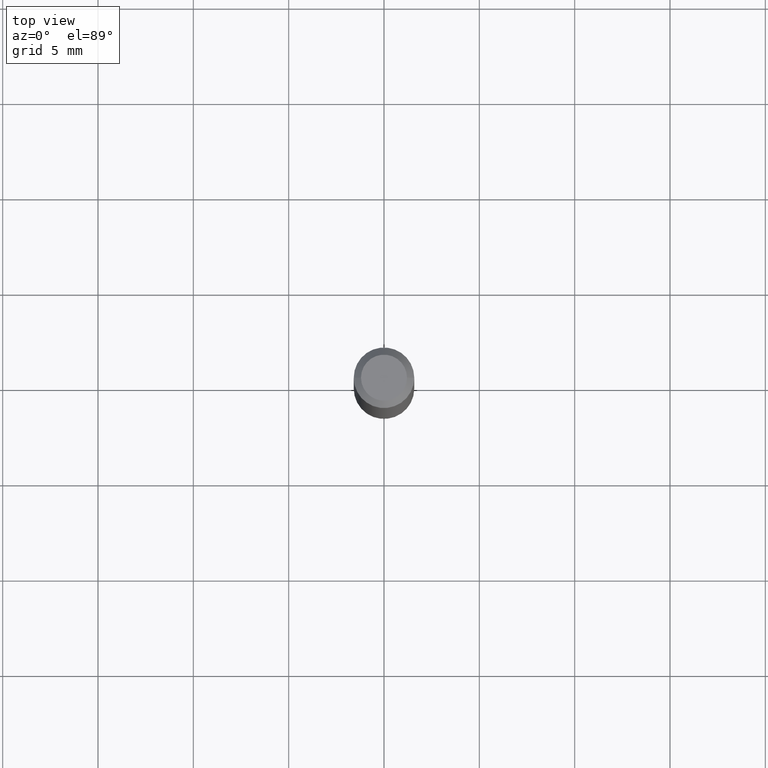
[diagram: clean part render]
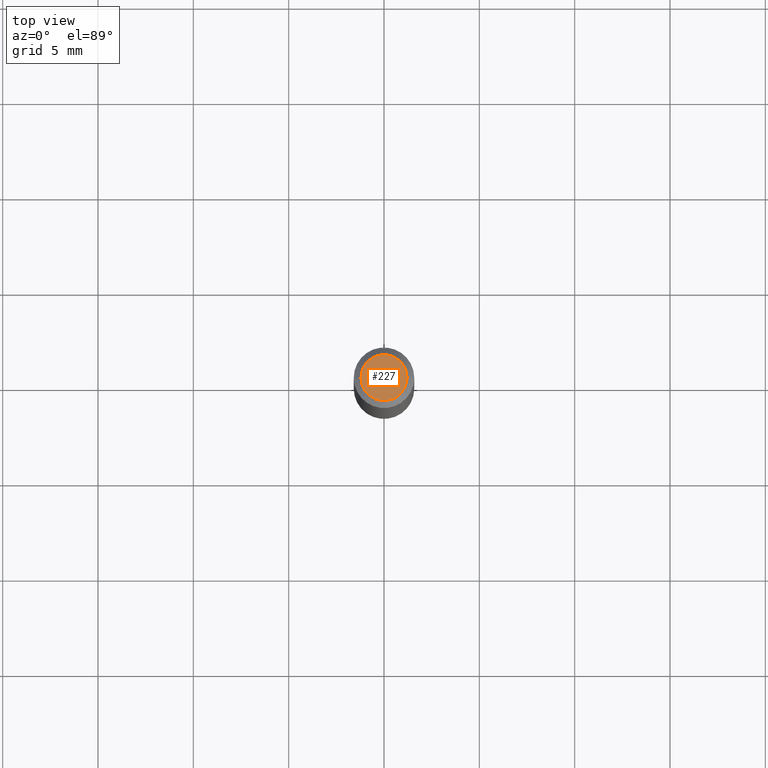
[diagram: same view with one face highlighted and labeled with its STEP entity id]
A machine part, top view. The second image highlights one B-rep face of the part: STEP entity #227.
In plain terms, the highlighted planar face has unit normal (0, -0, -1).
Its self-contained STEP definition (entity closure, byte-faithful):
#1 = CARTESIAN_POINT ( 'NONE',  ( -6.680649051745406845E-45, 9.538196290434862081E-31, 2.731847993664263218E-16 ) ) ;
#24 = FACE_OUTER_BOUND ( 'NONE', #470, .T. ) ;
#34 = CARTESIAN_POINT ( 'NONE',  ( 0.04750000000000000749, -4.035134999187568762E-16, 2.731847993664288856E-16 ) ) ;
#55 = DIRECTION ( 'NONE',  ( -2.445468806185136597E-29, 3.491481338843145583E-15, 1.000000000000000000 ) ) ;
#72 = ORIENTED_EDGE ( 'NONE', *, *, #104, .T. ) ;
#80 = AXIS2_PLACEMENT_3D ( 'NONE', #1, #469, #195 ) ;
#96 = CARTESIAN_POINT ( 'NONE',  ( -6.680649051745406845E-45, 9.538196290434862081E-31, 2.731847993664263218E-16 ) ) ;
#104 = EDGE_CURVE ( 'NONE', #288, #360, #436, .T. ) ;
#130 = DIRECTION ( 'NONE',  ( 1.000000000000000000, -6.982962677686266711E-15, 4.852736867747365086E-29 ) ) ;
#149 = AXIS2_PLACEMENT_3D ( 'NONE', #96, #55, #130 ) ;
#184 = DIRECTION ( 'NONE',  ( -1.000000000000000000, 6.982962677686265922E-15, -4.876176775795935793E-29 ) ) ;
#195 = DIRECTION ( 'NONE',  ( 1.000000000000000000, -6.982962677686266711E-15, 4.852736867747365086E-29 ) ) ;
#227 = ADVANCED_FACE ( 'NONE', ( #24 ), #257, .F. ) ;
#257 = PLANE ( 'NONE',  #362 ) ;
#282 = CIRCLE ( 'NONE', #80, 0.04750000000000000749 ) ;
#284 = EDGE_CURVE ( 'NONE', #360, #288, #282, .T. ) ;
#288 = VERTEX_POINT ( 'NONE', #34 ) ;
#332 = ORIENTED_EDGE ( 'NONE', *, *, #284, .T. ) ;
#360 = VERTEX_POINT ( 'NONE', #438 ) ;
#362 = AXIS2_PLACEMENT_3D ( 'NONE', #424, #383, #184 ) ;
#383 = DIRECTION ( 'NONE',  ( 2.438088387897960049E-29, -3.491481338843145188E-15, -1.000000000000000000 ) ) ;
#424 = CARTESIAN_POINT ( 'NONE',  ( 3.316907271900976589E-16, 0.04750000000000000749, -2.925296391183627249E-17 ) ) ;
#436 = CIRCLE ( 'NONE', #149, 0.04750000000000000749 ) ;
#438 = CARTESIAN_POINT ( 'NONE',  ( -0.04750000000000000749, 3.578768372314221353E-16, 2.731847993664239060E-16 ) ) ;
#469 = DIRECTION ( 'NONE',  ( -2.445468806185136597E-29, 3.491481338843145583E-15, 1.000000000000000000 ) ) ;
#470 = EDGE_LOOP ( 'NONE', ( #332, #72 ) ) ;